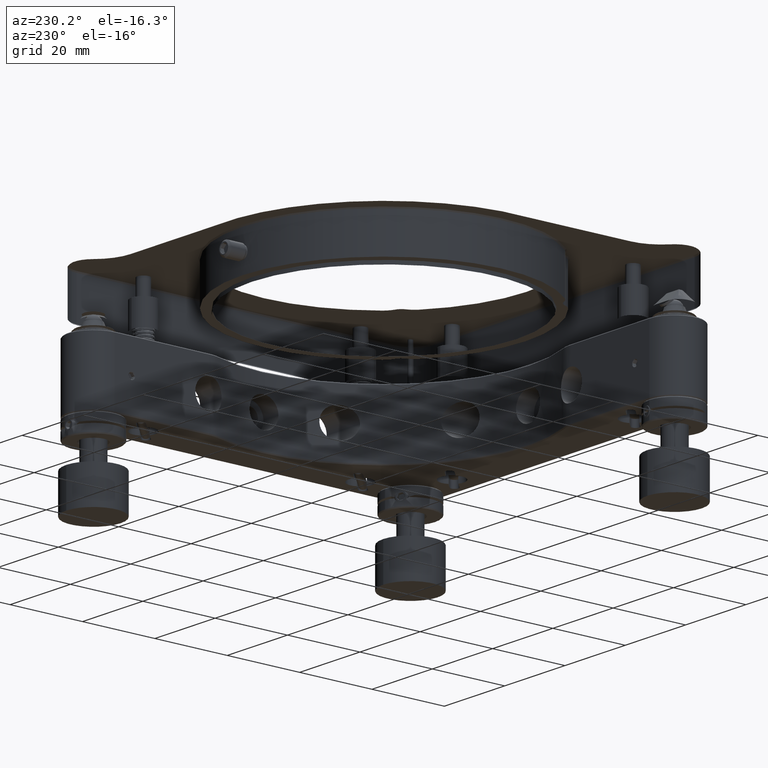
[diagram: clean part render]
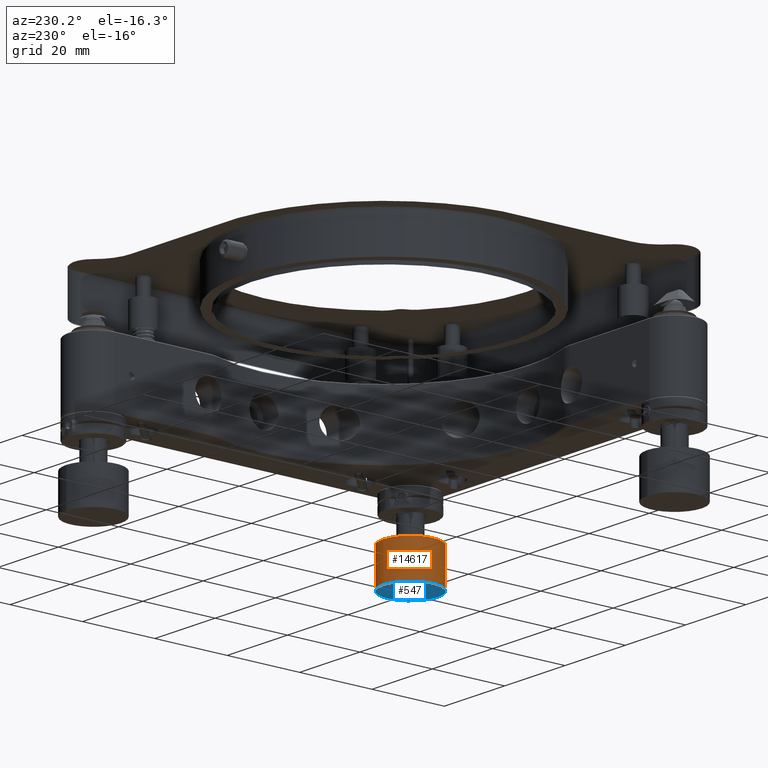
[diagram: same view with the hole feature highlighted: cylindrical wall and planar end face, labeled with their STEP entity ids]
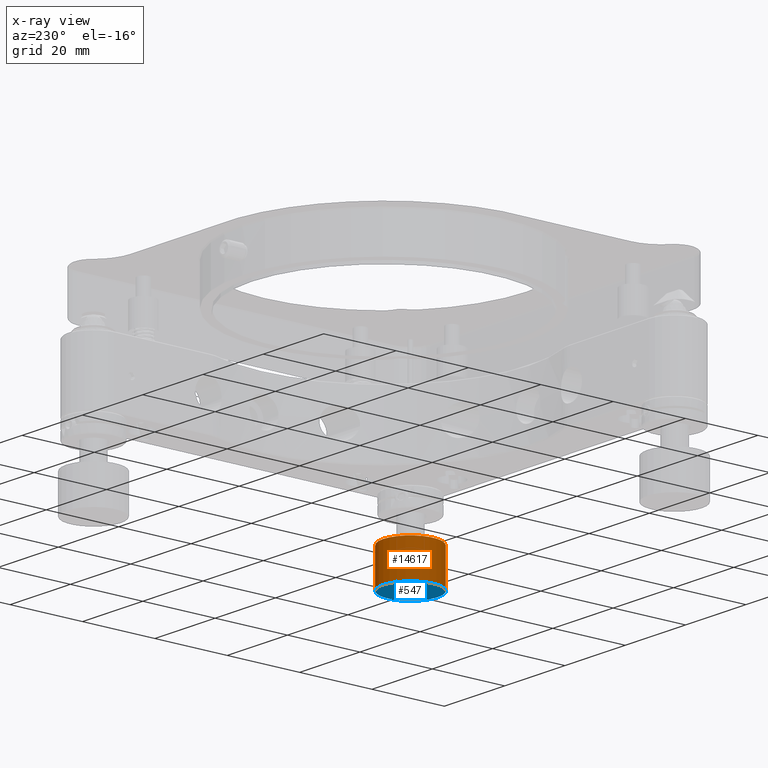
[diagram: x-ray of the same camera — body ghosted, the hole faces saturated]
A machine part, auxiliary view. The highlighted faces form one hole feature of diameter 15 mm: the cylindrical wall (entity #14617, orange) and its adjacent planar end face (entity #547, blue) — they share a circular edge in the B-rep.
The next image is the same camera in x-ray (body ghosted, the hole faces saturated) — the bore reads through the body.
Wall:
#1267 = EDGE_LOOP ( 'NONE', ( #12628 ) ) ;
#2466 = EDGE_LOOP ( 'NONE', ( #11362 ) ) ;
#3264 = EDGE_CURVE ( 'NONE', #12692, #12692, #9141, .T. ) ;
#3730 = CARTESIAN_POINT ( 'NONE',  ( 43.80000000000003268, -43.80000000000008242, -20.40342712474650000 ) ) ;
#3966 = CIRCLE ( 'NONE', #16961, 7.500000000000055067 ) ;
#5647 = DIRECTION ( 'NONE',  ( 0.000000000000000000, 1.000000000000000000, 5.088522196198596541E-15 ) ) ;
#6882 = CYLINDRICAL_SURFACE ( 'NONE', #15519, 7.500000000000055067 ) ;
#8253 = DIRECTION ( 'NONE',  ( 0.000000000000000000, 1.000000000000000000, 5.088522196198596541E-15 ) ) ;
#8293 = DIRECTION ( 'NONE',  ( -2.479384423333422930E-15, 5.088185010619292556E-15, -1.000000000000000000 ) ) ;
#9141 = CIRCLE ( 'NONE', #9707, 7.500000000000055067 ) ;
#9707 = AXIS2_PLACEMENT_3D ( 'NONE', #14418, #10624, #11769 ) ;
#10565 = CARTESIAN_POINT ( 'NONE',  ( 43.80000000000000426, -43.80000000000003268, -30.50342712474649787 ) ) ;
#10624 = DIRECTION ( 'NONE',  ( -2.479384423333422930E-15, 5.088185010619292556E-15, -1.000000000000000000 ) ) ;
#10825 = DIRECTION ( 'NONE',  ( -2.479384423333422930E-15, 5.088185010619292556E-15, -1.000000000000000000 ) ) ;
#11362 = ORIENTED_EDGE ( 'NONE', *, *, #15390, .F. ) ;
#11695 = VERTEX_POINT ( 'NONE', #14259 ) ;
#11769 = DIRECTION ( 'NONE',  ( 0.000000000000000000, 1.000000000000000000, 5.088522196198596541E-15 ) ) ;
#12628 = ORIENTED_EDGE ( 'NONE', *, *, #3264, .T. ) ;
#12692 = VERTEX_POINT ( 'NONE', #14362 ) ;
#14259 = CARTESIAN_POINT ( 'NONE',  ( 43.80000000000000426, -36.29999999999997584, -30.50342712474645879 ) ) ;
#14362 = CARTESIAN_POINT ( 'NONE',  ( 43.80000000000003268, -36.30000000000002558, -20.40342712474646092 ) ) ;
#14418 = CARTESIAN_POINT ( 'NONE',  ( 43.80000000000003268, -43.80000000000008242, -20.40342712474650000 ) ) ;
#14603 = FACE_OUTER_BOUND ( 'NONE', #2466, .T. ) ;
#14617 = ADVANCED_FACE ( 'NONE', ( #15854, #14603 ), #6882, .T. ) ;
#15390 = EDGE_CURVE ( 'NONE', #11695, #11695, #3966, .T. ) ;
#15519 = AXIS2_PLACEMENT_3D ( 'NONE', #3730, #8293, #5647 ) ;
#15854 = FACE_OUTER_BOUND ( 'NONE', #1267, .T. ) ;
#16961 = AXIS2_PLACEMENT_3D ( 'NONE', #10565, #10825, #8253 ) ;
End face:
#547 = ADVANCED_FACE ( 'NONE', ( #16119 ), #1163, .T. ) ;
#1163 = PLANE ( 'NONE',  #11679 ) ;
#2141 = EDGE_LOOP ( 'NONE', ( #11345 ) ) ;
#3966 = CIRCLE ( 'NONE', #16961, 7.500000000000055067 ) ;
#6557 = DIRECTION ( 'NONE',  ( 0.000000000000000000, 1.000000000000000000, 5.088185010619292556E-15 ) ) ;
#6820 = CARTESIAN_POINT ( 'NONE',  ( 43.80000000000000426, -43.80000000000003268, -30.50342712474649787 ) ) ;
#8253 = DIRECTION ( 'NONE',  ( 0.000000000000000000, 1.000000000000000000, 5.088522196198596541E-15 ) ) ;
#10565 = CARTESIAN_POINT ( 'NONE',  ( 43.80000000000000426, -43.80000000000003268, -30.50342712474649787 ) ) ;
#10825 = DIRECTION ( 'NONE',  ( -2.479384423333422930E-15, 5.088185010619292556E-15, -1.000000000000000000 ) ) ;
#11345 = ORIENTED_EDGE ( 'NONE', *, *, #15390, .T. ) ;
#11679 = AXIS2_PLACEMENT_3D ( 'NONE', #6820, #12126, #6557 ) ;
#11695 = VERTEX_POINT ( 'NONE', #14259 ) ;
#12126 = DIRECTION ( 'NONE',  ( -2.479384423333422930E-15, 5.088185010619292556E-15, -1.000000000000000000 ) ) ;
#14259 = CARTESIAN_POINT ( 'NONE',  ( 43.80000000000000426, -36.29999999999997584, -30.50342712474645879 ) ) ;
#15390 = EDGE_CURVE ( 'NONE', #11695, #11695, #3966, .T. ) ;
#16119 = FACE_OUTER_BOUND ( 'NONE', #2141, .T. ) ;
#16961 = AXIS2_PLACEMENT_3D ( 'NONE', #10565, #10825, #8253 ) ;